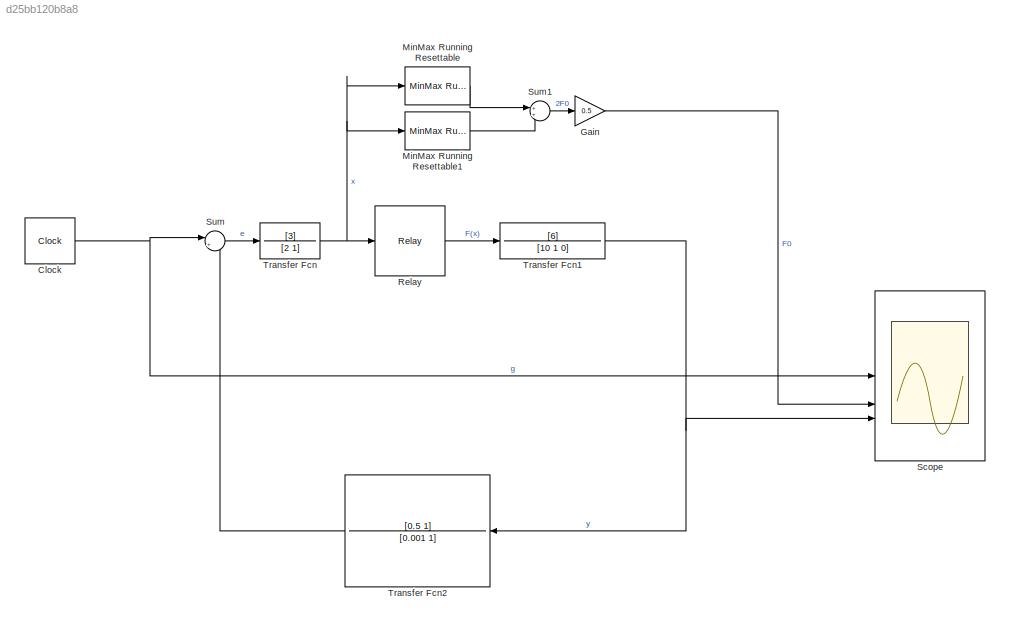
MODEL slx_d25bb120b8a8
KIND model
CONFIG AbsTol = auto
CONFIG EnableMultiTasking = off
CONFIG FixedStep = auto
CONFIG MaxStep = auto
CONFIG MinStep = 1e-4
CONFIG RelTol = 1e-3
CONFIG SampleTimeConstraint = Unconstrained
CONFIG SolverName = ode23s
CONFIG StartTime = 0.0
CONFIG StopTime = 300
BLOCK [Clock] Clock
  DisplayTime = on
BLOCK [Gain] Gain
  Gain = 0.5
BLOCK [Reference] MinMax Running Resettable  REF=simulink/Math
Operations/MinMax
Running
Resettable
  SourceBlock = simulink/Math\nOperations/MinMax\nRunning\nResettable
  SourceType = MinMax Running Resettable
BLOCK [Reference] MinMax Running Resettable1  REF=simulink/Math
Operations/MinMax
Running
Resettable
  SourceBlock = simulink/Math\nOperations/MinMax\nRunning\nResettable
  SourceType = MinMax Running Resettable
BLOCK [Relay] Relay
  OffOutputValue = -pi/2
  OffSwitchValue = 0
  OnOutputValue = pi/2
  OnSwitchValue = 0
BLOCK [Scope] Scope
  Floating = off
  NumInputPorts = 3
  ScopeSpecificationString = Simulink.scopes.TimeScopeBlockCfg('CurrentConfiguration', extmgr.ConfigurationSet(extmgr.Configuration('Core','General UI',true,'FigureColor',[1 1 1]),extmgr.Configuration('Core','Source UI',true),extmgr.Configuration('Sources','WiredSimulink',true),extmgr.Configuration('Visuals','Time Domain',true,'SerializedDisplays',{struct('MinYLimReal','-49.08882','MaxYLimReal','58.52914','YLabelReal','','Min...<+4186ch>
BLOCK [Sum] Sum
  Inputs = |+-
BLOCK [Sum] Sum1
BLOCK [TransferFcn] Transfer Fcn
  Denominator = [2 1]
  Numerator = [3]
BLOCK [TransferFcn] Transfer Fcn1
  Denominator = [10 1 0]
  Numerator = [6]
BLOCK [TransferFcn] Transfer Fcn2
  Denominator = [0.001 1]
  Numerator = [0.5 1]
NET Clock:1 -> Scope:1, Sum:1
LINE Gain:1 -> Scope:2
LINE MinMax Running Resettable1:1 -> Sum1:2
LINE MinMax Running Resettable:1 -> Sum1:1
LINE Relay:1 -> Transfer Fcn1:1
LINE Sum1:1 -> Gain:1
LINE Sum:1 -> Transfer Fcn:1
NET Transfer Fcn1:1 -> Scope:3, Transfer Fcn2:1
LINE Transfer Fcn2:1 -> Sum:2
NET Transfer Fcn:1 -> MinMax Running Resettable1:1, MinMax Running Resettable:1, Relay:1
note: NET lines group one-source signal fan-out (src -> all destinations, sorted); 1:1 wires keep LINE
